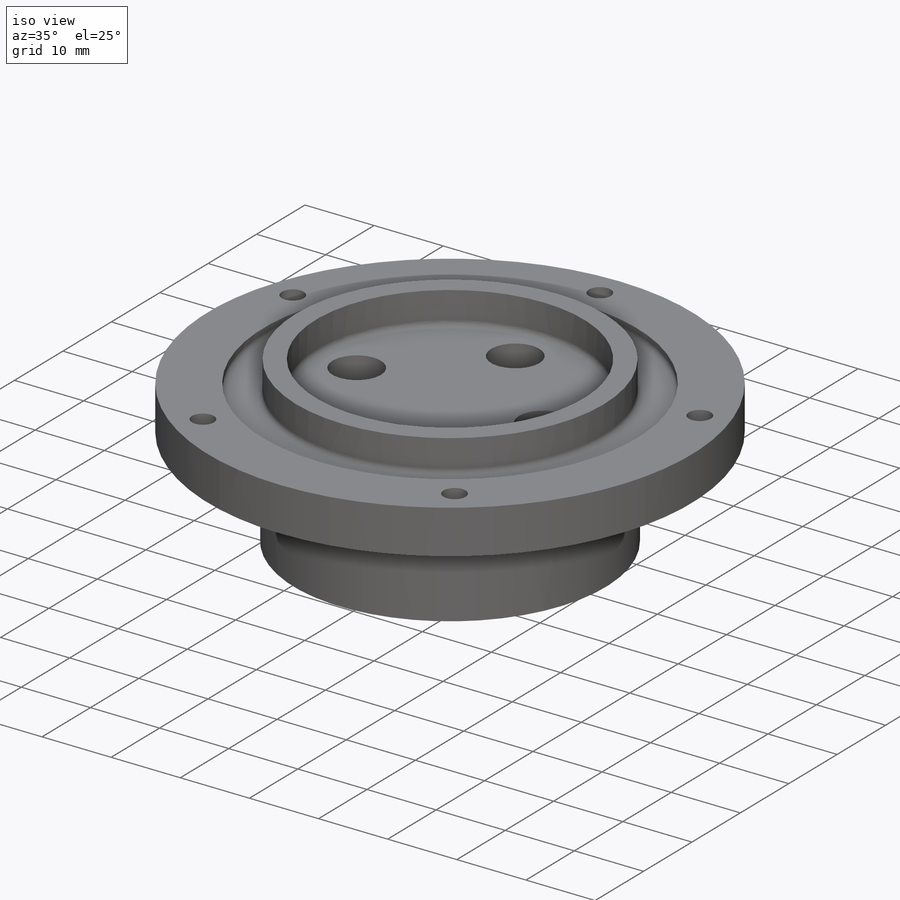
[diagram: iso view]
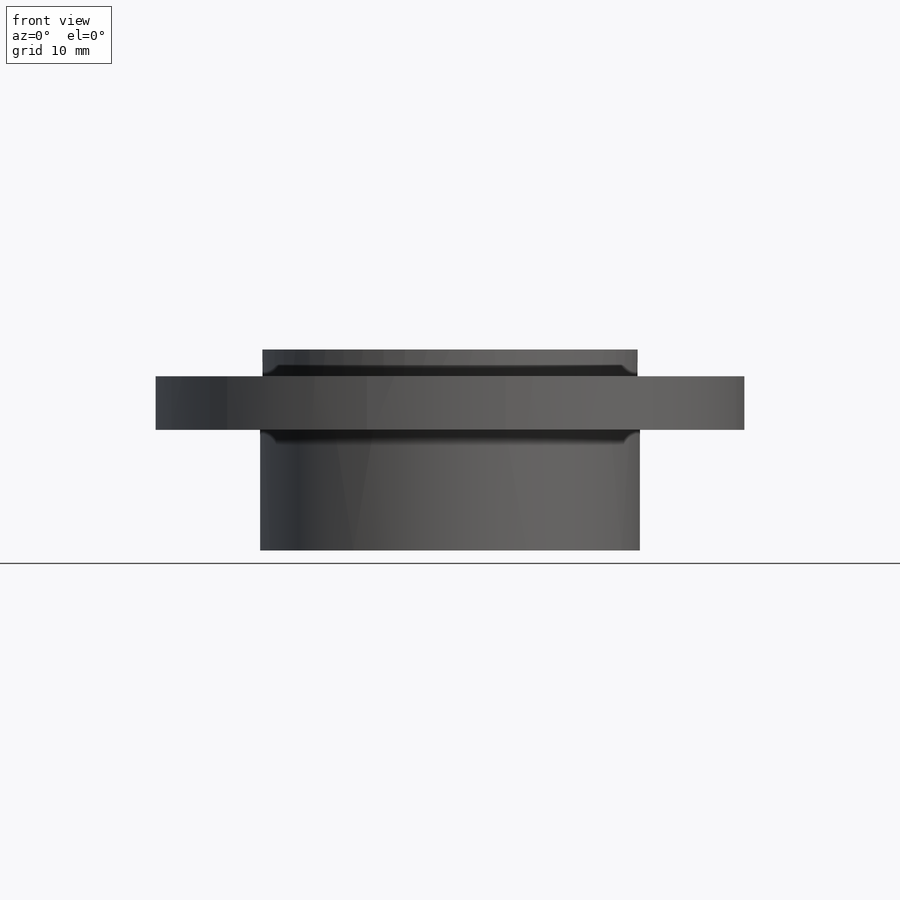
[diagram: front view]
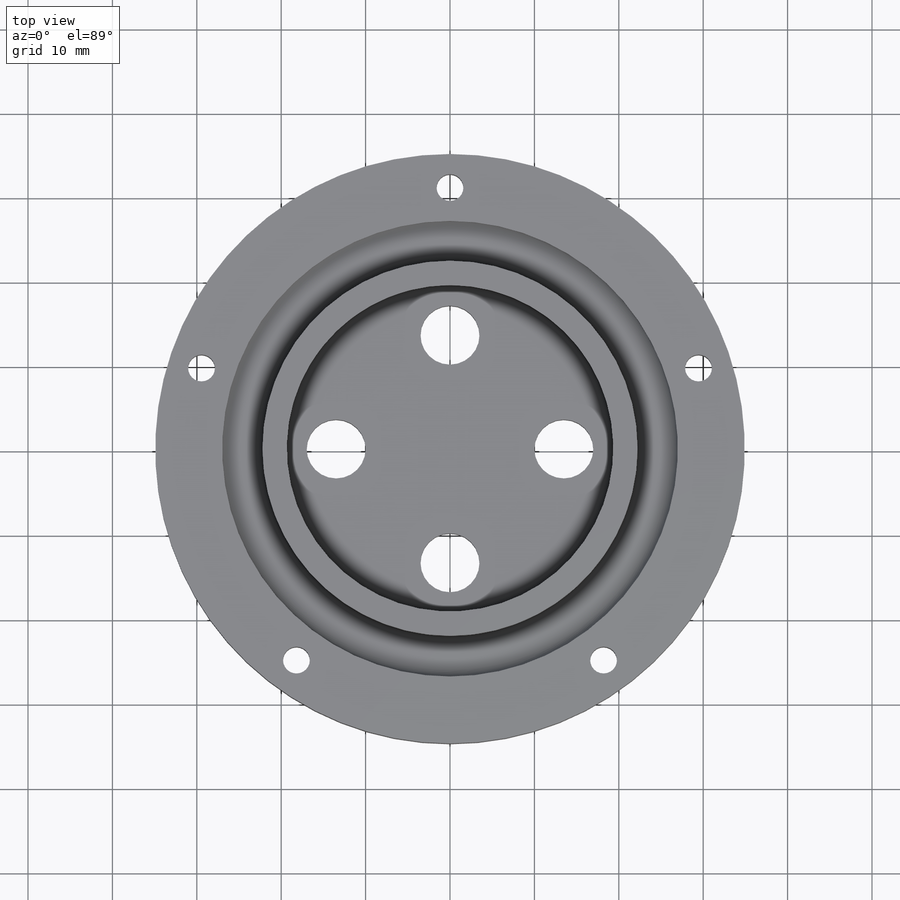
[diagram: top view]
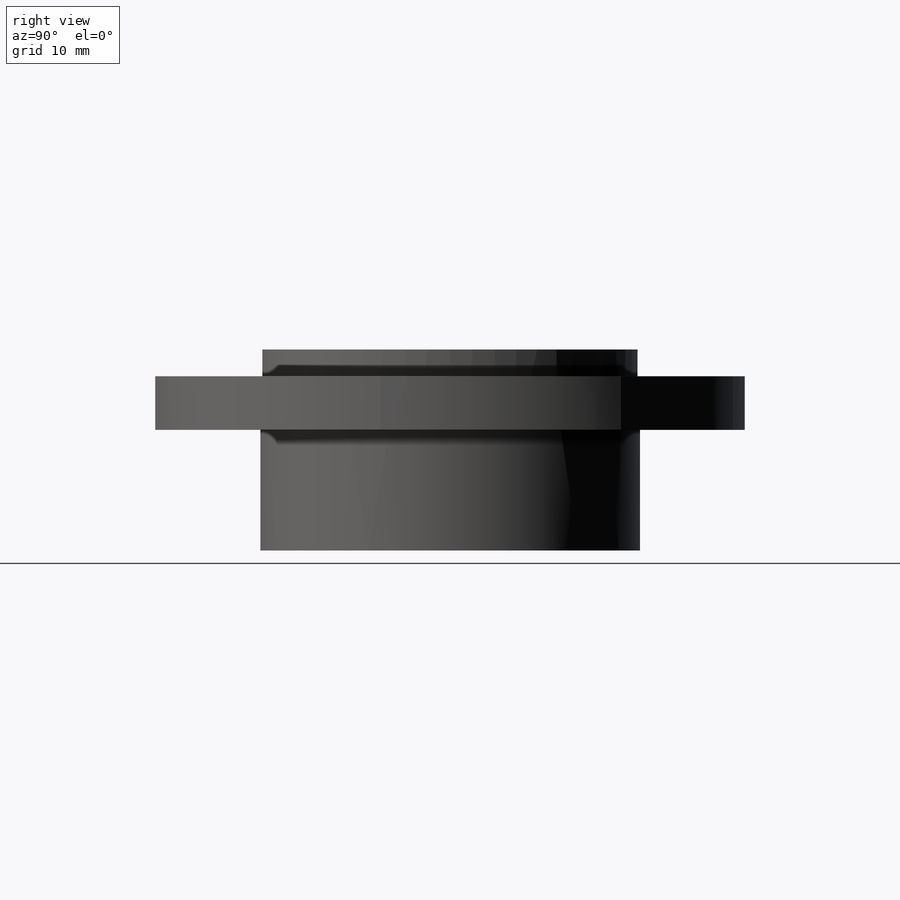
[diagram: right view]
SOLIDWORKS PART (.sldprt)
format: sldprt  version: not decoded by parser v0  size: 336,896 bytes
history: native  units: mm
features: sketch x3, cut_extrude x2, material x1, revolve x1, pattern_circular x1, fillet x1 (+11 scaffold rows collapsed)
feature tree (20):
  scaffold x11  (default folders/planes/origin — collapsed)
  material  "ASTM A36 Steel"
  sketch  "Sketch1"  dims[c1.D1=38.6715mm c1.D2=44.45mm c1.D3=69.85mm c1.D4=~7.267948mm c2.D4=90.0deg c3.D4=14.2875mm c3.D5=14.2875mm c3.D6=3.175mm c3.D7=4.7625mm c3.D8=3.175mm c3.D9=28.575mm c3.D10=50.8mm c3.D11=4.7625mm c4.D6=1.5875mm c4.D12=~6.06425mm c4.D10=3.175mm c4.D9=6.35mm c5.D12=~2.88925mm]
  revolve  "Revolve1"  Angle=360deg
  sketch  "Sketch2"  dims[D2=6.985mm D1=13.4874mm]
  cut_extrude  "Cut-Extrude1"  [1 undecoded]
  sketch  "Sketch3"  dims[D1=3.175mm]
  cut_extrude  "Cut-Extrude2"  [1 undecoded]
  pattern_circular  "CirPattern1"  Count=5 Angle=360deg
  fillet  "Fillet1"  Radius=0.79375mm
decode coverage: 6 of 8 modeling features carry decoded parameters
note: ~ marks probable driven/reference dimensions
note: 2 parameter values undecoded
note: suppression state not decoded; provenance and decode notes live in map.json
